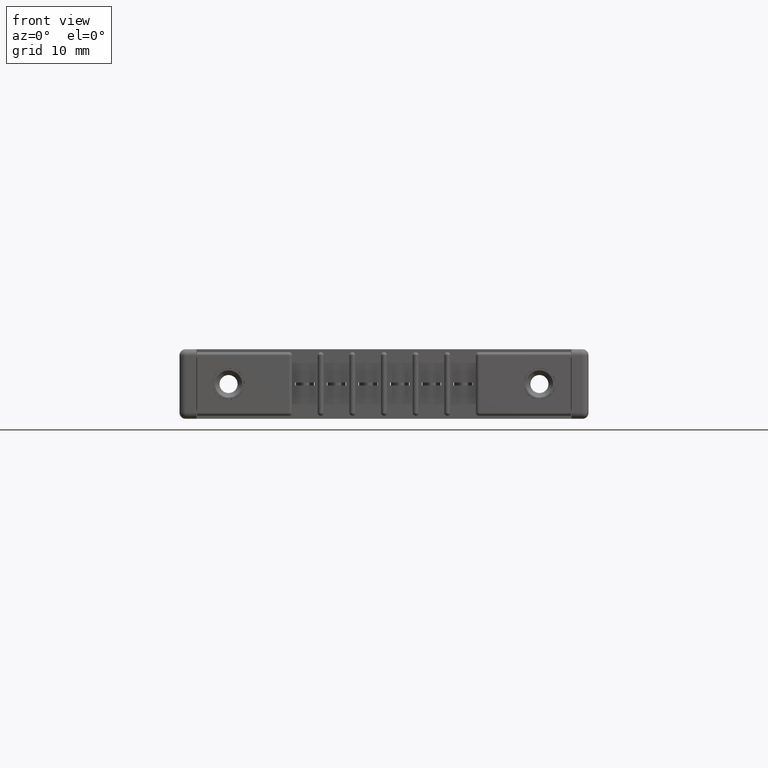
[diagram: clean part render]
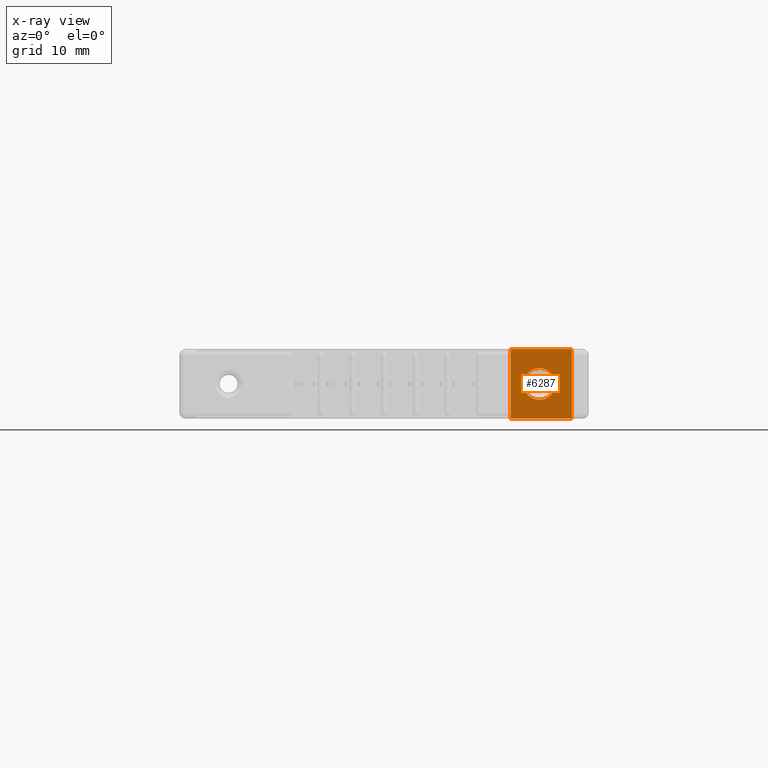
[diagram: x-ray — body ghosted, one internal face saturated and labeled with its STEP entity id]
A machine part, front view, then the same camera in x-ray: the body is ghosted and one INTERNAL B-rep face — a face not visible from any outside direction — is saturated and labeled: STEP entity #6287.
In plain terms, the highlighted planar face has unit normal (0, -1, -0).
Its self-contained STEP definition (entity closure, byte-faithful):
#230 = CARTESIAN_POINT ( 'NONE',  ( 0.2420000000000000800, 0.2450000000000000000, -0.2495000000000000300 ) ) ;
#602 = AXIS2_PLACEMENT_3D ( 'NONE', #1847, #8027, #7596 ) ;
#983 = AXIS2_PLACEMENT_3D ( 'NONE', #10318, #1145, #6886 ) ;
#1043 = AXIS2_PLACEMENT_3D ( 'NONE', #9573, #9770, #9783 ) ;
#1145 = DIRECTION ( 'NONE',  ( 1.138269997360109700E-016, -1.000000000000000000, 0.0000000000000000000 ) ) ;
#1199 = VERTEX_POINT ( 'NONE', #9631 ) ;
#1527 = VECTOR ( 'NONE', #4137, 39.37007874015748100 ) ;
#1847 = CARTESIAN_POINT ( 'NONE',  ( 0.2420000000000000800, 0.2450000000000000000, -0.1715000000000000400 ) ) ;
#2675 = VECTOR ( 'NONE', #12174, 39.37007874015748100 ) ;
#2922 = VERTEX_POINT ( 'NONE', #230 ) ;
#4137 = DIRECTION ( 'NONE',  ( 0.0000000000000000000, 0.0000000000000000000, 1.000000000000000000 ) ) ;
#4139 = EDGE_CURVE ( 'NONE', #1199, #2922, #6614, .T. ) ;
#4365 = EDGE_CURVE ( 'NONE', #6388, #11637, #11040, .T. ) ;
#4723 = EDGE_CURVE ( 'NONE', #2922, #1199, #4942, .T. ) ;
#4724 = EDGE_CURVE ( 'NONE', #10209, #11637, #10037, .T. ) ;
#4728 = EDGE_CURVE ( 'NONE', #9246, #10209, #12246, .T. ) ;
#4750 = EDGE_CURVE ( 'NONE', #9246, #6388, #9696, .T. ) ;
#4942 = CIRCLE ( 'NONE', #602, 0.07800000000000000000 ) ;
#5249 = FACE_OUTER_BOUND ( 'NONE', #11123, .T. ) ;
#6052 = CARTESIAN_POINT ( 'NONE',  ( 0.08400000000000004700, 0.2449999999999999400, -0.3430000000000000300 ) ) ;
#6287 = ADVANCED_FACE ( 'NONE', ( #8383, #5249 ), #9271, .T. ) ;
#6388 = VERTEX_POINT ( 'NONE', #8238 ) ;
#6614 = CIRCLE ( 'NONE', #983, 0.07800000000000000000 ) ;
#6886 = DIRECTION ( 'NONE',  ( 1.000000000000000000, 0.0000000000000000000, 0.0000000000000000000 ) ) ;
#7181 = VECTOR ( 'NONE', #7402, 39.37007874015748100 ) ;
#7200 = CARTESIAN_POINT ( 'NONE',  ( 0.08400000000000004700, 0.2449999999999999400, -0.3430000000000000300 ) ) ;
#7402 = DIRECTION ( 'NONE',  ( 1.000000000000000000, 1.138269997360109700E-016, -0.0000000000000000000 ) ) ;
#7596 = DIRECTION ( 'NONE',  ( 1.000000000000000000, 0.0000000000000000000, 0.0000000000000000000 ) ) ;
#8027 = DIRECTION ( 'NONE',  ( 1.138269997360109700E-016, -1.000000000000000000, 0.0000000000000000000 ) ) ;
#8238 = CARTESIAN_POINT ( 'NONE',  ( 0.3840000000000000600, 0.2450000000000000000, -0.3430000000000000300 ) ) ;
#8383 = FACE_BOUND ( 'NONE', #9332, .T. ) ;
#9246 = VERTEX_POINT ( 'NONE', #6052 ) ;
#9265 = CARTESIAN_POINT ( 'NONE',  ( 0.3840000000000000600, 0.2450000000000000000, -0.3430000000000000300 ) ) ;
#9271 = PLANE ( 'NONE',  #1043 ) ;
#9332 = EDGE_LOOP ( 'NONE', ( #10664, #10771 ) ) ;
#9416 = VECTOR ( 'NONE', #11313, 39.37007874015748100 ) ;
#9573 = CARTESIAN_POINT ( 'NONE',  ( 0.3840000000000000600, 0.2450000000000000000, -0.3430000000000000300 ) ) ;
#9631 = CARTESIAN_POINT ( 'NONE',  ( 0.2420000000000000800, 0.2450000000000000000, -0.09350000000000005500 ) ) ;
#9696 = LINE ( 'NONE', #11697, #9416 ) ;
#9770 = DIRECTION ( 'NONE',  ( 1.138269997360109700E-016, -1.000000000000000000, 0.0000000000000000000 ) ) ;
#9783 = DIRECTION ( 'NONE',  ( 1.000000000000000000, 1.138269997360109700E-016, 0.0000000000000000000 ) ) ;
#10037 = LINE ( 'NONE', #12616, #7181 ) ;
#10209 = VERTEX_POINT ( 'NONE', #10491 ) ;
#10318 = CARTESIAN_POINT ( 'NONE',  ( 0.2420000000000000800, 0.2450000000000000000, -0.1715000000000000400 ) ) ;
#10491 = CARTESIAN_POINT ( 'NONE',  ( 0.08400000000000004700, 0.2449999999999999400, 0.0000000000000000000 ) ) ;
#10664 = ORIENTED_EDGE ( 'NONE', *, *, #4139, .F. ) ;
#10771 = ORIENTED_EDGE ( 'NONE', *, *, #4723, .F. ) ;
#10836 = ORIENTED_EDGE ( 'NONE', *, *, #4724, .F. ) ;
#11040 = LINE ( 'NONE', #9265, #2675 ) ;
#11084 = ORIENTED_EDGE ( 'NONE', *, *, #4728, .F. ) ;
#11106 = ORIENTED_EDGE ( 'NONE', *, *, #4750, .T. ) ;
#11123 = EDGE_LOOP ( 'NONE', ( #10836, #11084, #11106, #11175 ) ) ;
#11175 = ORIENTED_EDGE ( 'NONE', *, *, #4365, .T. ) ;
#11313 = DIRECTION ( 'NONE',  ( 1.000000000000000000, 1.138269997360109700E-016, -0.0000000000000000000 ) ) ;
#11637 = VERTEX_POINT ( 'NONE', #12980 ) ;
#11697 = CARTESIAN_POINT ( 'NONE',  ( 0.3840000000000000600, 0.2450000000000000000, -0.3430000000000000300 ) ) ;
#12174 = DIRECTION ( 'NONE',  ( 0.0000000000000000000, 0.0000000000000000000, 1.000000000000000000 ) ) ;
#12246 = LINE ( 'NONE', #7200, #1527 ) ;
#12616 = CARTESIAN_POINT ( 'NONE',  ( 0.3840000000000000600, 0.2450000000000000000, 0.0000000000000000000 ) ) ;
#12980 = CARTESIAN_POINT ( 'NONE',  ( 0.3840000000000000600, 0.2450000000000000000, 0.0000000000000000000 ) ) ;